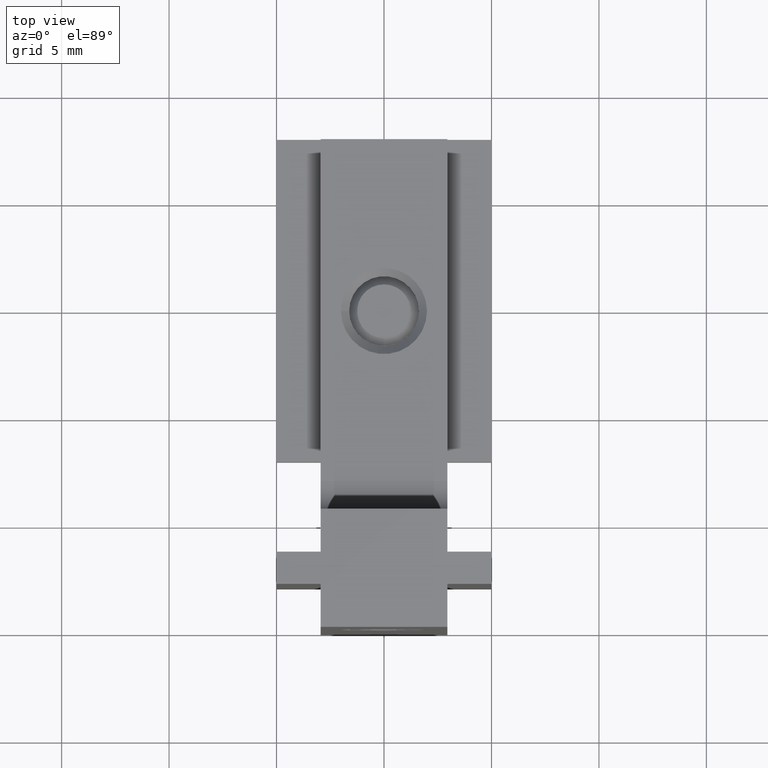
[diagram: clean part render]
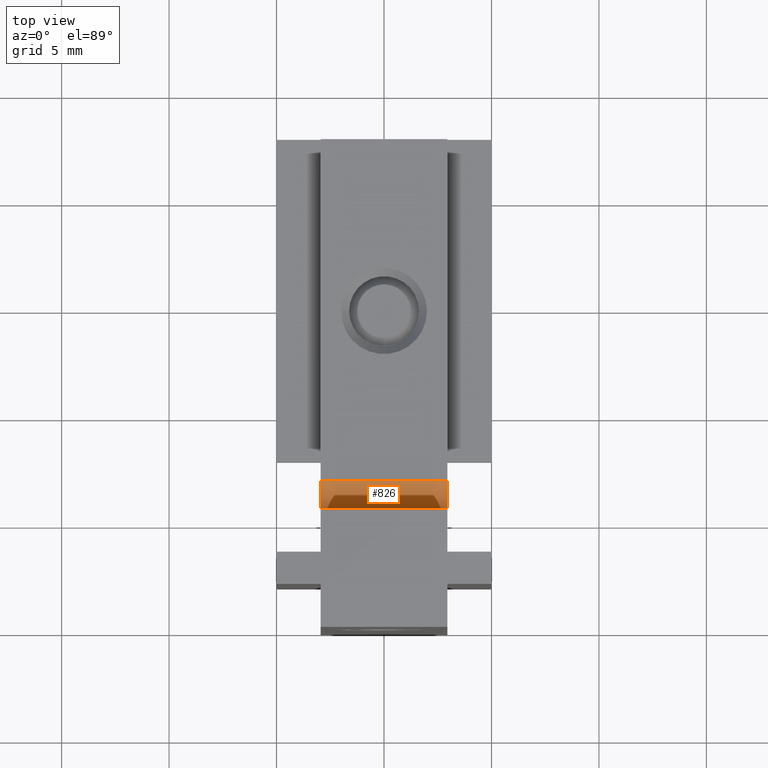
[diagram: same view with one face highlighted and labeled with its STEP entity id]
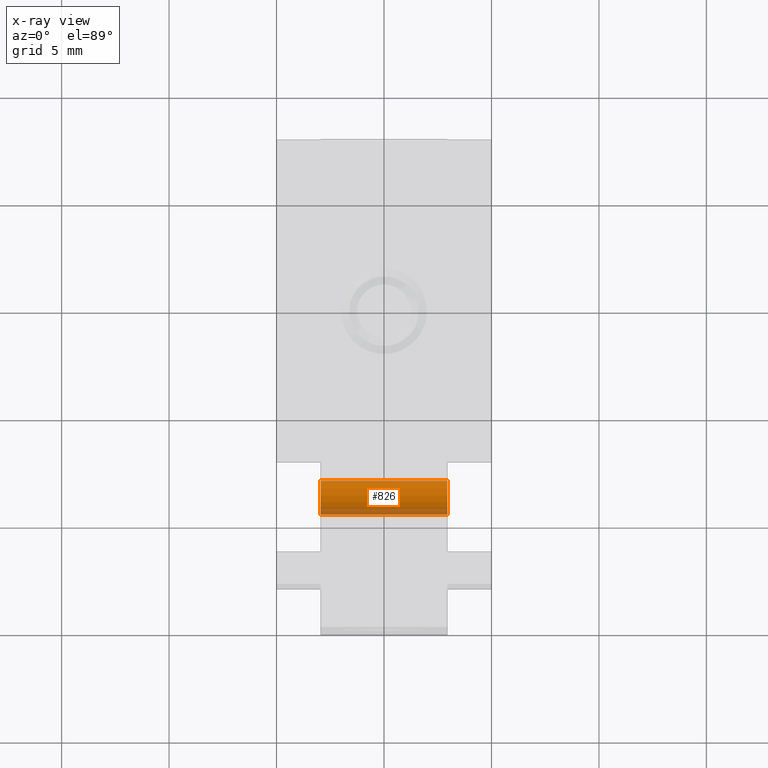
[diagram: x-ray of the same camera — body ghosted, the highlighted face saturated]
A machine part, top view. The second image highlights one B-rep face of the part: STEP entity #826.
The next image is the same camera in x-ray: the body ghosted, the highlighted face saturated — about 18% of this face is hidden behind the body in this view.
In plain terms, the highlighted cylindrical surface (edge-blend (fillet) strip) has radius 1.6 mm, axis along (-1, 0, 0).
Its self-contained STEP definition (entity closure, byte-faithful):
#42=CYLINDRICAL_SURFACE('',#914,1.6);
#61=LINE('',#1194,#141);
#107=LINE('',#1297,#187);
#141=VECTOR('',#961,1000.);
#187=VECTOR('',#1045,1000.);
#369=ORIENTED_EDGE('',*,*,#450,.F.);
#370=ORIENTED_EDGE('',*,*,#439,.F.);
#371=ORIENTED_EDGE('',*,*,#468,.T.);
#372=ORIENTED_EDGE('',*,*,#491,.T.);
#439=EDGE_CURVE('',#547,#548,#61,.T.);
#450=EDGE_CURVE('',#548,#557,#616,.T.);
#468=EDGE_CURVE('',#547,#571,#619,.T.);
#491=EDGE_CURVE('',#571,#557,#107,.T.);
#547=VERTEX_POINT('',#1195);
#548=VERTEX_POINT('',#1196);
#557=VERTEX_POINT('',#1217);
#571=VERTEX_POINT('',#1250);
#616=CIRCLE('',#878,1.6);
#619=CIRCLE('',#883,1.6);
#675=EDGE_LOOP('',(#369,#370,#371,#372));
#739=FACE_BOUND('',#675,.T.);
#826=ADVANCED_FACE('',(#739),#42,.F.);
#878=AXIS2_PLACEMENT_3D('',#1216,#975,#976);
#883=AXIS2_PLACEMENT_3D('',#1251,#1000,#1001);
#914=AXIS2_PLACEMENT_3D('',#1346,#1101,#1102);
#961=DIRECTION('',(-1.,0.,0.));
#975=DIRECTION('',(1.,0.,0.));
#976=DIRECTION('',(0.,0.,-1.));
#1000=DIRECTION('',(1.,0.,0.));
#1001=DIRECTION('',(0.,0.,-1.));
#1045=DIRECTION('',(-1.,0.,0.));
#1101=DIRECTION('',(-1.,0.,0.));
#1102=DIRECTION('',(0.,0.,1.));
#1194=CARTESIAN_POINT('',(2.95,5.5,7.1));
#1195=CARTESIAN_POINT('',(2.95,5.5,7.1));
#1196=CARTESIAN_POINT('',(-2.95,5.5,7.1));
#1216=CARTESIAN_POINT('',(-2.95,7.1,7.1));
#1217=CARTESIAN_POINT('',(-2.95,7.1,5.5));
#1250=CARTESIAN_POINT('',(2.95,7.1,5.5));
#1251=CARTESIAN_POINT('',(2.95,7.1,7.1));
#1297=CARTESIAN_POINT('',(2.95,7.1,5.5));
#1346=CARTESIAN_POINT('',(2.95,7.1,7.1));